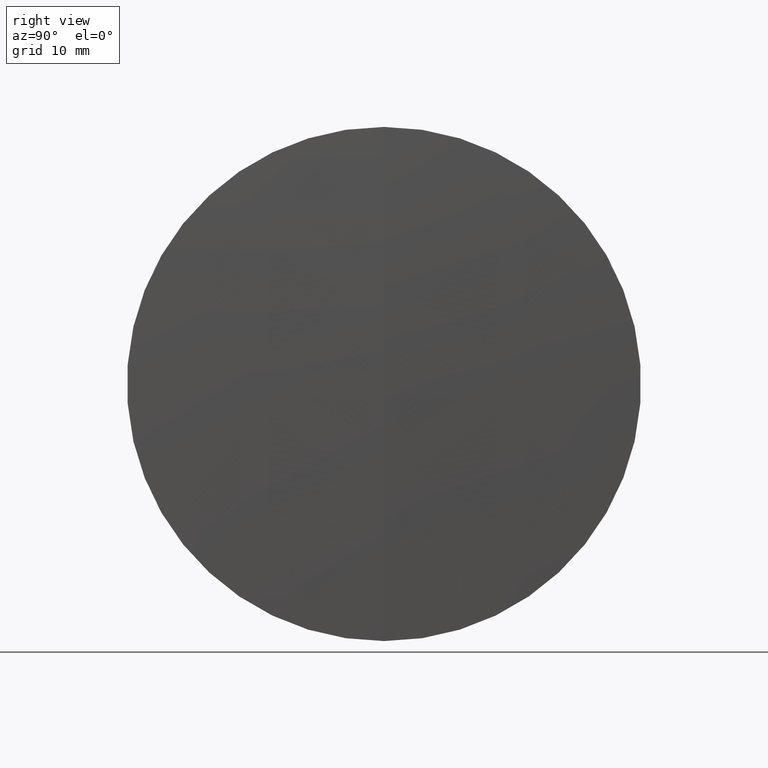
[diagram: clean part render]
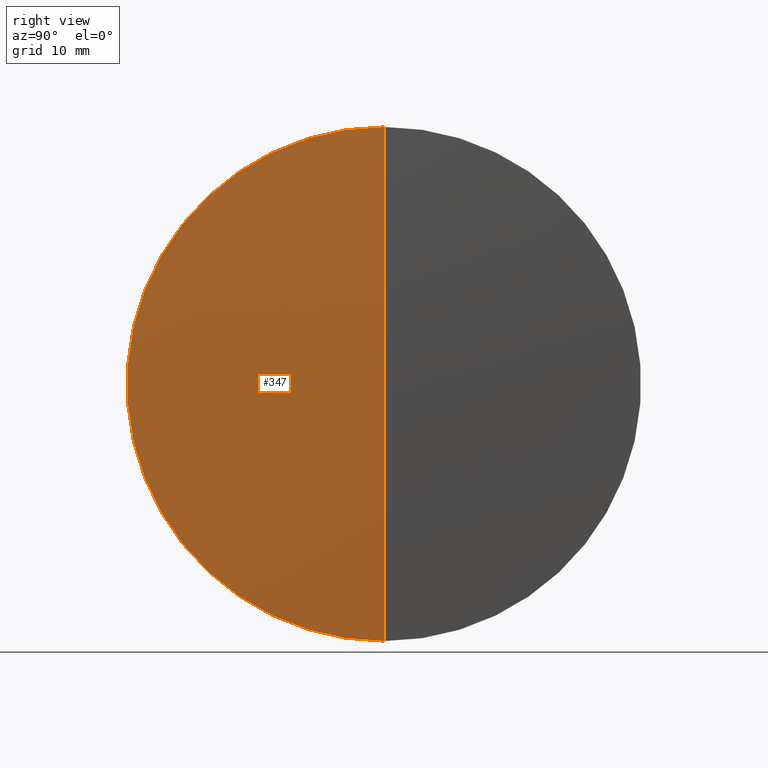
[diagram: same view with one face highlighted and labeled with its STEP entity id]
A machine part, right view. The second image highlights one B-rep face of the part: STEP entity #347.
In plain terms, the highlighted spherical surface has radius 530.64 mm.
Its self-contained STEP definition (entity closure, byte-faithful):
#2 = EDGE_CURVE ( 'NONE', #116, #27, #72, .T. ) ;
#3 = DIRECTION ( 'NONE',  ( 0.0000000000000000000, 1.000000000000000000, 0.0000000000000000000 ) ) ;
#27 = VERTEX_POINT ( 'NONE', #272 ) ;
#32 = ORIENTED_EDGE ( 'NONE', *, *, #180, .F. ) ;
#33 = AXIS2_PLACEMENT_3D ( 'NONE', #104, #295, #186 ) ;
#37 = CIRCLE ( 'NONE', #118, 530.6399999999998700 ) ;
#55 = SPHERICAL_SURFACE ( 'NONE', #232, 530.6399999999998700 ) ;
#72 = CIRCLE ( 'NONE', #200, 24.99999999999968000 ) ;
#104 = CARTESIAN_POINT ( 'NONE',  ( -263.3089253802954800, 0.0000000000000000000, 0.0000000000000000000 ) ) ;
#116 = VERTEX_POINT ( 'NONE', #260 ) ;
#118 = AXIS2_PLACEMENT_3D ( 'NONE', #267, #278, #173 ) ;
#131 = CARTESIAN_POINT ( 'NONE',  ( 267.3310746197044000, 0.0000000000000000000, 3.249232887497756800E-014 ) ) ;
#135 = CARTESIAN_POINT ( 'NONE',  ( -263.3089253802954800, 0.0000000000000000000, 0.0000000000000000000 ) ) ;
#140 = CARTESIAN_POINT ( 'NONE',  ( 266.7418359624271600, 0.0000000000000000000, 0.0000000000000000000 ) ) ;
#143 = ORIENTED_EDGE ( 'NONE', *, *, #2, .F. ) ;
#161 = ORIENTED_EDGE ( 'NONE', *, *, #275, .T. ) ;
#173 = DIRECTION ( 'NONE',  ( 0.0000000000000000000, -1.224646799147353200E-016, 1.000000000000000000 ) ) ;
#180 = EDGE_CURVE ( 'NONE', #273, #116, #37, .T. ) ;
#186 = DIRECTION ( 'NONE',  ( 0.0000000000000000000, 0.0000000000000000000, -1.000000000000000000 ) ) ;
#192 = DIRECTION ( 'NONE',  ( 0.0000000000000000000, 0.0000000000000000000, 1.000000000000000000 ) ) ;
#194 = CIRCLE ( 'NONE', #33, 530.6399999999998700 ) ;
#200 = AXIS2_PLACEMENT_3D ( 'NONE', #140, #248, #212 ) ;
#212 = DIRECTION ( 'NONE',  ( 0.0000000000000000000, 0.0000000000000000000, 1.000000000000000000 ) ) ;
#232 = AXIS2_PLACEMENT_3D ( 'NONE', #135, #3, #192 ) ;
#248 = DIRECTION ( 'NONE',  ( -1.000000000000000000, -0.0000000000000000000, -0.0000000000000000000 ) ) ;
#260 = CARTESIAN_POINT ( 'NONE',  ( 266.7418359624271600, 3.061616997868357000E-015, -24.99999999999968000 ) ) ;
#261 = EDGE_LOOP ( 'NONE', ( #32, #161, #143 ) ) ;
#266 = FACE_OUTER_BOUND ( 'NONE', #261, .T. ) ;
#267 = CARTESIAN_POINT ( 'NONE',  ( -263.3089253802954800, 0.0000000000000000000, 0.0000000000000000000 ) ) ;
#272 = CARTESIAN_POINT ( 'NONE',  ( 266.7418359624271600, 0.0000000000000000000, 24.99999999999968000 ) ) ;
#273 = VERTEX_POINT ( 'NONE', #131 ) ;
#275 = EDGE_CURVE ( 'NONE', #273, #27, #194, .T. ) ;
#278 = DIRECTION ( 'NONE',  ( -0.0000000000000000000, 1.000000000000000000, 1.224646799147353200E-016 ) ) ;
#295 = DIRECTION ( 'NONE',  ( 0.0000000000000000000, -1.000000000000000000, 0.0000000000000000000 ) ) ;
#347 = ADVANCED_FACE ( 'NONE', ( #266 ), #55, .T. ) ;